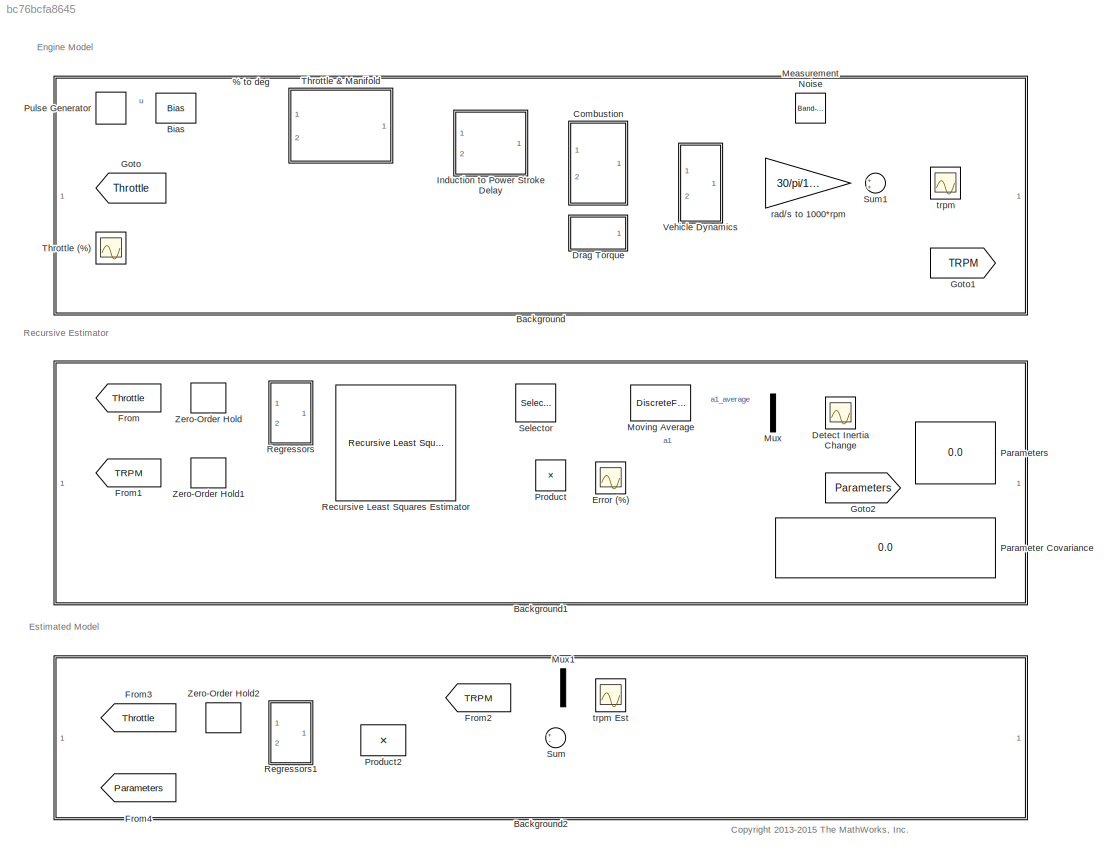
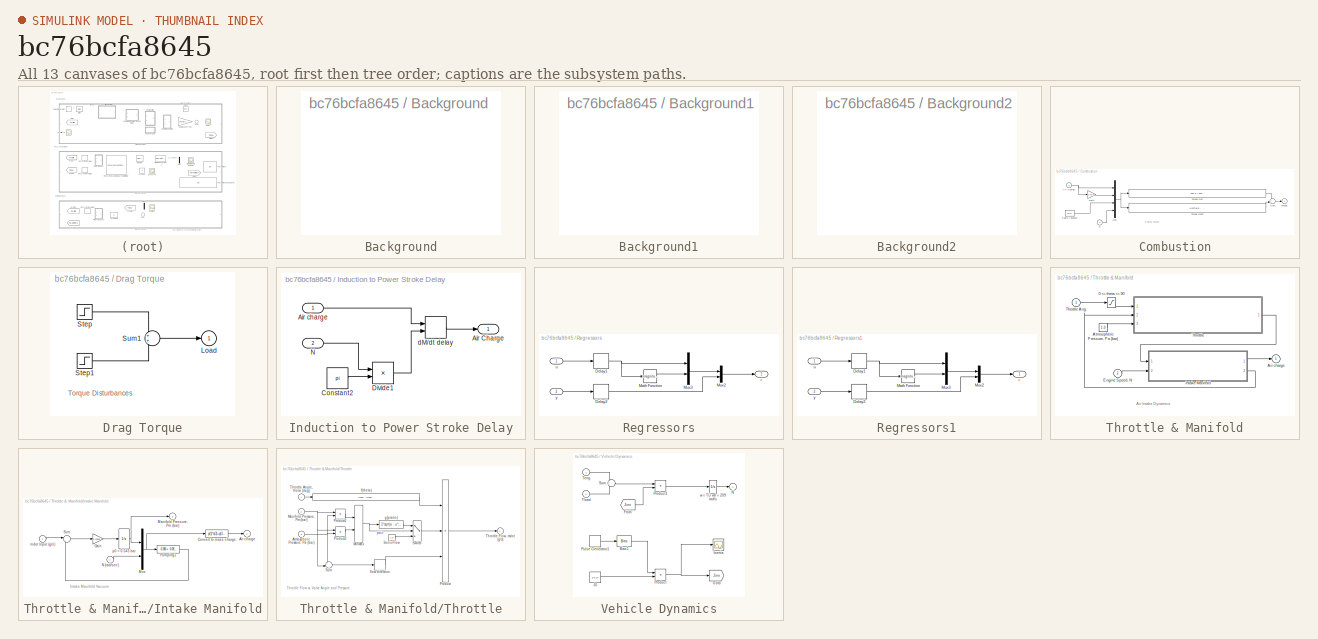
[diagram: thumbnail index - all 13 canvases of the model, root first then tree order]
MODEL slx_bc76bcfa8645
KIND model
CONFIG AbsTol = auto
CONFIG FixedStep = auto
CONFIG MaxStep = 0.01
CONFIG MinStep = auto
CONFIG RelTol = 1e-3
CONFIG SampleTimeConstraint = Unconstrained
CONFIG Solver = ode45
CONFIG SolverMode = Auto
CONFIG SolverName = ode45
CONFIG StartTime = 0.0
CONFIG StopTime = 200
WORKSPACE source: MAT-file member
WORKSPACE Adist = -0.7
BLOCK [Gain] % to deg 
  Gain = 90
BLOCK [SubSystem] Background
  Ports = []
  RequestExecContextInheritance = off
  Variant = off
BLOCK [SubSystem] Background1
  Ports = []
  RequestExecContextInheritance = off
  Variant = off
BLOCK [SubSystem] Background2
  Ports = []
  RequestExecContextInheritance = off
  Variant = off
BLOCK [Bias] Bias
  Bias = 1/9
  SaturateOnIntegerOverflow = off
BLOCK [SubSystem] Combustion
  Ports = [2, 1]
  RTWMemSecDataConstants = Default
  RTWMemSecDataInternal = Default
  RTWMemSecDataParameters = Default
  RTWMemSecFuncExecute = Default
  RTWMemSecFuncInitTerm = Default
  RequestExecContextInheritance = off
  Variant = off
BLOCK [Inport] Combustion/Air Charge
  IconDisplay = Port number
BLOCK [Gain] Combustion/Gain
  Gain = 1/14.6
  OutDataTypeStr = Inherit: Inherit via internal rule
  ParamDataTypeStr = Inherit: Inherit via internal rule
  SaturateOnIntegerOverflow = off
BLOCK [Mux] Combustion/Mux
  DisplayOption = bar
  Ports = [4, 1]
BLOCK [Inport] Combustion/N
  IconDisplay = Port number
  Port = 2
BLOCK [Constant] Combustion/Spark Advance
  Value = 15.0
BLOCK [Sum] Combustion/Sum
  IconShape = round
  Ports = [2, 1]
BLOCK [Outport] Combustion/Torque
  IconDisplay = Port number
  InitialOutput = 0
BLOCK [Fcn] Combustion/Torque Gen
  Expr = -181.3 + 379.36*u[1] + 21.91*u[1]/u[2] - (0.85*u[1]*u[1])/(u[2]*u[2]) + 0.26*u[3] - 0.0028*u[3]*u[3]
BLOCK [Fcn] Combustion/Torque Gen2
  Expr = 0.027*u[4] - 0.000107*u[4]*u[4] + 0.00048*u[4]*u[3] + 2.55*u[3]*u[1] - 0.05*u[3]*u[3]*u[1]
BLOCK [Scope] Detect Inertia Change
  Ports = [1]
  ScopeSpecificationString = C++SS(StrPVP('Location','[1182, 429, 1508, 681]'),StrPVP('Open','off'),MxPVP('AxesTitles',24,'struct(''axes1'',''%<SignalLabel>'')'),MxPVP('ScopeGraphics',28,'struct(''FigureColor'',''[0.501960784313725 0.501960784313725 0.501960784313725]'',''AxesColor'',''[0 0 0]'',''AxesTickColor'',''[1 1 1]'',''LineColors'',''[1 1 0;1 0 1;0 1 1;1 0 0;0 1 0;0 0 1]'',''LineStyles'',''-|-|-|-|-|-'',''LineWidths''...<+389ch>
BLOCK [SubSystem] Drag Torque
  Ports = [0, 1]
  RTWMemSecDataConstants = Default
  RTWMemSecDataInternal = Default
  RTWMemSecDataParameters = Default
  RTWMemSecFuncExecute = Default
  RTWMemSecFuncInitTerm = Default
  RequestExecContextInheritance = off
  Variant = off
BLOCK [Outport] Drag Torque/Load
  IconDisplay = Port number
  InitialOutput = 0
BLOCK [Step] Drag Torque/Step
  After = 0
  SampleTime = 0
  Time = 45
BLOCK [Step] Drag Torque/Step1
  After = 0
  SampleTime = 0
  Time = 45
BLOCK [Sum] Drag Torque/Sum1
  IconShape = round
  Ports = [2, 1]
BLOCK [Scope] Error (%)
  Ports = [1]
  ScopeSpecificationString = C++SS(StrPVP('Location','[1217, 833, 1537, 1088]'),StrPVP('Open','off'),MxPVP('AxesTitles',24,'struct(''axes1'',''%<SignalLabel>'')'),MxPVP('ScopeGraphics',28,'struct(''FigureColor'',''[0.5 0.5 0.5]'',''AxesColor'',''[0 0 0]'',''AxesTickColor'',''[1 1 1]'',''LineColors'',''[1 1 0;1 0 1;0 1 1;1 0 0;0 1 0;0 0 1]'',''LineStyles'',''-|-|-|-|-|-'',''LineWidths'',''[0.5 0.5 0.5 0.5 0.5 0.5]'',''MarkerSt...<+323ch>
BLOCK [From] From
  GotoTag = Throttle
BLOCK [From] From1
  GotoTag = TRPM
BLOCK [From] From2
  GotoTag = TRPM
BLOCK [From] From3
  GotoTag = Throttle
BLOCK [From] From4
  GotoTag = Parameters
BLOCK [Goto] Goto
  GotoTag = Throttle
BLOCK [Goto] Goto1
  GotoTag = TRPM
BLOCK [Goto] Goto2
  GotoTag = Parameters
BLOCK [SubSystem] Induction to Power Stroke Delay
  Ports = [2, 1]
  RTWMemSecDataConstants = Default
  RTWMemSecDataInternal = Default
  RTWMemSecDataParameters = Default
  RTWMemSecFuncExecute = Default
  RTWMemSecFuncInitTerm = Default
  RequestExecContextInheritance = off
  Variant = off
BLOCK [Outport] Induction to Power Stroke Delay/Air Charge
  IconDisplay = Port number
BLOCK [Inport] Induction to Power Stroke Delay/Air charge
  IconDisplay = Port number
BLOCK [Constant] Induction to Power Stroke Delay/Constant2
  Value = pi
BLOCK [Product] Induction to Power Stroke Delay/Divide1
  InputSameDT = off
  Inputs = /*
  OutDataTypeStr = Inherit: Inherit via internal rule
  Ports = [2, 1]
  RndMeth = Floor
  SaturateOnIntegerOverflow = off
BLOCK [Inport] Induction to Power Stroke Delay/N
  IconDisplay = Port number
  Port = 2
BLOCK [VariableTransportDelay] Induction to Power Stroke Delay/dM//dt delay
  InitialOutput = 0.152231307101552
  MaximumDelay = 10
  MaximumPoints = 5120
  PadeOrder = 2
  Ports = [2, 1]
  TransDelayFeedthrough = on
BLOCK [Reference] Measurement Noise  REF=simulink/Sources/Band-Limited
White Noise
  Ports = [0, 1]
  SourceBlock = simulink/Sources/Band-Limited\nWhite Noise
  SourceType = Band-Limited White Noise.
BLOCK [DiscreteFilter] Moving Average
  Denominator = [1 -(1-1/N)]
  InputPortMap = u0
  Numerator = [0 1/N]
  Ports = [1, 1]
BLOCK [Mux] Mux
  DisplayOption = bar
  Inputs = 2
  Ports = [2, 1]
BLOCK [Mux] Mux1
  DisplayOption = bar
  Inputs = 2
  Ports = [2, 1]
BLOCK [Display] Parameter Covariance
  Decimation = 1
  Ports = [1]
BLOCK [Display] Parameters
  Decimation = 1
  Ports = [1]
BLOCK [Product] Product
  InputSameDT = off
  Inputs = */
  OutDataTypeStr = Inherit: Inherit via internal rule
  Ports = [2, 1]
  RndMeth = Floor
  SaturateOnIntegerOverflow = off
BLOCK [Product] Product2
  InputSameDT = off
  Multiplication = Matrix(*)
  OutDataTypeStr = Inherit: Inherit via internal rule
  Ports = [2, 1]
  RndMeth = Floor
  SaturateOnIntegerOverflow = off
BLOCK [DiscretePulseGenerator] Pulse Generator
  Amplitude = 7/9
  Period = 20
  Ports = [0, 1]
  PulseType = Time based
  PulseWidth = 50
BLOCK [Reference] Recursive Least Squares Estimator  REF=slident/Estimators/Recursive Least Squares Estimator  (lib defined in mdl_f7d4911ca73a)
  Ports = [2, 3]
  SourceBlock = slident/Estimators/Recursive Least Squares Estimator
  SourceType = idEstimatorsRLS
BLOCK [SubSystem] Regressors
  Ports = [2, 1]
  RequestExecContextInheritance = off
  Variant = off
BLOCK [Delay] Regressors/Delay1
  DelayLength = 1
  InitialCondition = 1
  InputPortMap = u0
  Ports = [1, 1]
  SampleTime = Ts
BLOCK [Delay] Regressors/Delay2
  DelayLength = 1
  InitialCondition = 2
  InputPortMap = u0
  Ports = [1, 1]
  SampleTime = Ts
BLOCK [Math] Regressors/Math Function
  Operator = magnitude^2
  Ports = [1, 1]
BLOCK [Mux] Regressors/Mux2
  DisplayOption = bar
  Inputs = 2
  Ports = [2, 1]
BLOCK [Mux] Regressors/Mux3
  DisplayOption = bar
  Inputs = 2
  Ports = [2, 1]
BLOCK [Outport] Regressors/r
  IconDisplay = Port number
BLOCK [Inport] Regressors/u
  IconDisplay = Port number
BLOCK [Inport] Regressors/y
  IconDisplay = Port number
  Port = 2
BLOCK [SubSystem] Regressors1
  Ports = [2, 1]
  RequestExecContextInheritance = off
  Variant = off
BLOCK [Delay] Regressors1/Delay1
  DelayLength = 1
  InitialCondition = 1
  InputPortMap = u0
  Ports = [1, 1]
  SampleTime = Ts
BLOCK [Delay] Regressors1/Delay2
  DelayLength = 1
  InitialCondition = 2
  InputPortMap = u0
  Ports = [1, 1]
  SampleTime = Ts
BLOCK [Math] Regressors1/Math Function
  Operator = magnitude^2
  Ports = [1, 1]
BLOCK [Mux] Regressors1/Mux2
  DisplayOption = bar
  Inputs = 2
  Ports = [2, 1]
BLOCK [Mux] Regressors1/Mux3
  DisplayOption = bar
  Inputs = 2
  Ports = [2, 1]
BLOCK [Outport] Regressors1/r
  IconDisplay = Port number
BLOCK [Inport] Regressors1/u
  IconDisplay = Port number
BLOCK [Inport] Regressors1/y
  IconDisplay = Port number
  Port = 2
BLOCK [Selector] Selector
  IndexOptions = Index vector (dialog)
  Indices = 1
  InputPortWidth = 3
  OutputSizes = 1
  Ports = [1, 1]
BLOCK [Sum] Sum
  InputSameDT = off
  Inputs = +-
  OutDataTypeStr = Inherit: Inherit via internal rule
  Ports = [2, 1]
  SaturateOnIntegerOverflow = off
BLOCK [Sum] Sum1
  IconShape = round
  InputSameDT = off
  Inputs = ++|
  OutDataTypeStr = Inherit: Inherit via internal rule
  Ports = [2, 1]
  SaturateOnIntegerOverflow = off
BLOCK [SubSystem] Throttle & Manifold
  Ports = [2, 1]
  RTWMemSecDataConstants = Default
  RTWMemSecDataInternal = Default
  RTWMemSecDataParameters = Default
  RTWMemSecFuncExecute = Default
  RTWMemSecFuncInitTerm = Default
  RequestExecContextInheritance = off
  Variant = off
BLOCK [Saturate] Throttle & Manifold/0 <= theta <= 90
  InputPortMap = u0
  LowerLimit = 0
  Ports = [1, 1]
  UpperLimit = 90
BLOCK [Outport] Throttle & Manifold/Air charge
  IconDisplay = Port number
  InitialOutput = 0
BLOCK [Constant] Throttle & Manifold/Atmospheric Pressure, Pa (bar)
  Value = 1.0
BLOCK [Inport] Throttle & Manifold/Engine Speed, N
  IconDisplay = Port number
  Port = 2
BLOCK [SubSystem] Throttle & Manifold/Intake Manifold
  Ports = [2, 2]
  RTWMemSecDataConstants = Default
  RTWMemSecDataInternal = Default
  RTWMemSecDataParameters = Default
  RTWMemSecFuncExecute = Default
  RTWMemSecFuncInitTerm = Default
  RequestExecContextInheritance = off
  Variant = off
BLOCK [Outport] Throttle & Manifold/Intake Manifold/Air charge
  IconDisplay = Port number
  InitialOutput = 0
BLOCK [Fcn] Throttle & Manifold/Intake Manifold/Convert to mass charge
  Expr = p(1)*u(2)+p(2)*u(1)+p(3)*u(1)*u(1)+p(4)*u(1)*u(2)+p(5)
BLOCK [Gain] Throttle & Manifold/Intake Manifold/Gain
  Gain = 0.41328
  OutDataTypeStr = Inherit: Inherit via internal rule
  ParamDataTypeStr = Inherit: Inherit via internal rule
  SaturateOnIntegerOverflow = off
BLOCK [Outport] Throttle & Manifold/Intake Manifold/Manifold Pressure, Pm (bar)
  IconDisplay = Port number
  InitialOutput = 0
  Port = 2
BLOCK [Mux] Throttle & Manifold/Intake Manifold/Mux
  DisplayOption = bar
  Inputs = 2
  Ports = [2, 1]
BLOCK [Inport] Throttle & Manifold/Intake Manifold/N (rad//sec)
  IconDisplay = Port number
  Port = 2
BLOCK [Fcn] Throttle & Manifold/Intake Manifold/Pumping1
  Expr = -0.366 + 0.08979*u[1]*u[2] - 0.0337*u[2]*u[1]*u[1] + 0.0001*u[1]*u[2]*u[2]
BLOCK [Sum] Throttle & Manifold/Intake Manifold/Sum
  IconShape = round
  Inputs = |+-
  Ports = [2, 1]
BLOCK [Inport] Throttle & Manifold/Intake Manifold/mdot Input (g//s)
  IconDisplay = Port number
BLOCK [Integrator] Throttle & Manifold/Intake Manifold/p0 = 0.543 bar
  InitialCondition = 0.543634736225556
  Ports = [1, 1]
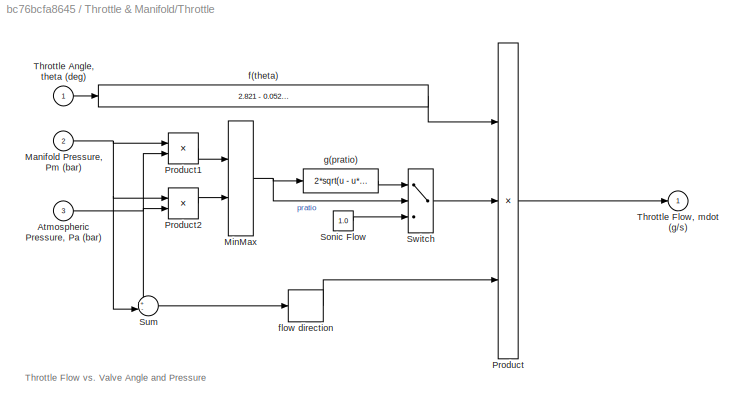
BLOCK [SubSystem] Throttle & Manifold/Throttle
  Ports = [3, 1]
  RTWMemSecDataConstants = Default
  RTWMemSecDataInternal = Default
  RTWMemSecDataParameters = Default
  RTWMemSecFuncExecute = Default
  RTWMemSecFuncInitTerm = Default
  RequestExecContextInheritance = off
  Variant = off
BLOCK [Inport] Throttle & Manifold/Throttle Ang.
  IconDisplay = Port number
BLOCK [Inport] Throttle & Manifold/Throttle/Atmospheric Pressure, Pa (bar) 
  IconDisplay = Port number
  Port = 3
BLOCK [Inport] Throttle & Manifold/Throttle/Manifold Pressure, Pm (bar)
  IconDisplay = Port number
  Port = 2
BLOCK [MinMax] Throttle & Manifold/Throttle/MinMax
  Inputs = 2
  Ports = [2, 1]
BLOCK [Product] Throttle & Manifold/Throttle/Product
  Inputs = 3
  Ports = [3, 1]
BLOCK [Product] Throttle & Manifold/Throttle/Product1
  Inputs = */
  Ports = [2, 1]
BLOCK [Product] Throttle & Manifold/Throttle/Product2
  Inputs = /*
  Ports = [2, 1]
BLOCK [Constant] Throttle & Manifold/Throttle/Sonic Flow 
  Value = 1.0
BLOCK [Sum] Throttle & Manifold/Throttle/Sum
  IconShape = round
  Inputs = +-|
  Ports = [2, 1]
BLOCK [Switch] Throttle & Manifold/Throttle/Switch
  Threshold = 0.5
BLOCK [Inport] Throttle & Manifold/Throttle/Throttle Angle, theta (deg)
  IconDisplay = Port number
BLOCK [Outport] Throttle & Manifold/Throttle/Throttle Flow, mdot (g//s)
  IconDisplay = Port number
  InitialOutput = 0
BLOCK [Fcn] Throttle & Manifold/Throttle/f(theta)
  Expr = 2.821 - 0.05231*u + 0.10299*u*u - 0.00063*u*u*u
BLOCK [Signum] Throttle & Manifold/Throttle/flow direction
BLOCK [Fcn] Throttle & Manifold/Throttle/g(pratio)
  Expr = 2*sqrt(u - u*u)
BLOCK [Scope] Throttle (%)
  Ports = [1]
  ScopeSpecificationString = C++SS(StrPVP('Location','[255, 474, 815, 729]'),StrPVP('Open','off'),MxPVP('AxesTitles',24,'struct(''axes1'',''%<SignalLabel>'')'),MxPVP('ScopeGraphics',28,'struct(''FigureColor'',''[0.5 0.5 0.5]'',''AxesColor'',''[0 0 0]'',''AxesTickColor'',''[1 1 1]'',''LineColors'',''[1 1 0;1 0 1;0 1 1;1 0 0;0 1 0;0 0 1]'',''LineStyles'',''-|-|-|-|-|-'',''LineWidths'',''[0.5 0.5 0.5 0.5 0.5 0.5]'',''MarkerStyle...<+292ch>
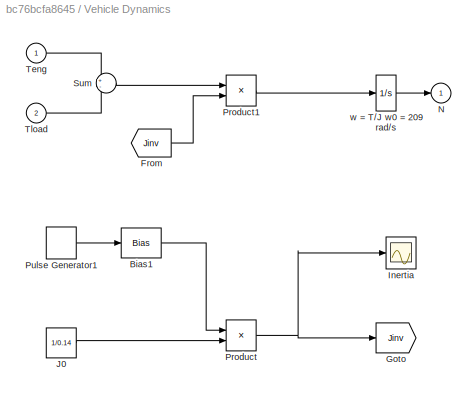
BLOCK [SubSystem] Vehicle Dynamics
  Ports = [2, 1]
  RTWMemSecDataConstants = Default
  RTWMemSecDataInternal = Default
  RTWMemSecDataParameters = Default
  RTWMemSecFuncExecute = Default
  RTWMemSecFuncInitTerm = Default
  RequestExecContextInheritance = off
  Variant = off
BLOCK [Bias] Vehicle Dynamics/Bias1
  Bias = 1
  SaturateOnIntegerOverflow = off
BLOCK [From] Vehicle Dynamics/From
  GotoTag = Jinv
BLOCK [Goto] Vehicle Dynamics/Goto
  GotoTag = Jinv
BLOCK [Scope] Vehicle Dynamics/Inertia
  Ports = [1]
  ScopeSpecificationString = C++SS(StrPVP('Location','[256, 850, 816, 1095]'),StrPVP('Open','off'),MxPVP('AxesTitles',24,'struct(''axes1'',''%<SignalLabel>'')'),MxPVP('ScopeGraphics',28,'struct(''FigureColor'',''[0.5 0.5 0.5]'',''AxesColor'',''[0 0 0]'',''AxesTickColor'',''[1 1 1]'',''LineColors'',''[1 1 0;1 0 1;0 1 1;1 0 0;0 1 0;0 0 1]'',''LineStyles'',''-|-|-|-|-|-'',''LineWidths'',''[0.5 0.5 0.5 0.5 0.5 0.5]'',''MarkerStyl...<+296ch>
BLOCK [Constant] Vehicle Dynamics/J0
  Value = 1/0.14
BLOCK [Outport] Vehicle Dynamics/N
  IconDisplay = Port number
  InitialOutput = 0
BLOCK [Product] Vehicle Dynamics/Product
  InputSameDT = off
  OutDataTypeStr = Inherit: Inherit via internal rule
  Ports = [2, 1]
  RndMeth = Floor
  SaturateOnIntegerOverflow = off
BLOCK [Product] Vehicle Dynamics/Product1
  InputSameDT = off
  OutDataTypeStr = Inherit: Inherit via internal rule
  Ports = [2, 1]
  RndMeth = Floor
  SaturateOnIntegerOverflow = off
BLOCK [DiscretePulseGenerator] Vehicle Dynamics/Pulse Generator1
  Amplitude = Adist
  Period = Tdist
  PhaseDelay = Tdist/2
  Ports = [0, 1]
  PulseType = Time based
  PulseWidth = 50
BLOCK [Sum] Vehicle Dynamics/Sum
  IconShape = round
  Inputs = +-
  Ports = [2, 1]
BLOCK [Inport] Vehicle Dynamics/Teng
  IconDisplay = Port number
BLOCK [Inport] Vehicle Dynamics/Tload
  IconDisplay = Port number
  Port = 2
BLOCK [Integrator] Vehicle Dynamics/w = T//J w0 = 209 rad//s
  InitialCondition = 209.4395102393211
  Ports = [1, 1]
BLOCK [ZeroOrderHold] Zero-Order Hold
  SampleTime = Ts
BLOCK [ZeroOrderHold] Zero-Order Hold1
  SampleTime = Ts
BLOCK [ZeroOrderHold] Zero-Order Hold2
  SampleTime = Ts
BLOCK [Gain] rad//s to 1000*rpm
  Gain = 30/pi/1000
BLOCK [Scope] trpm
  Ports = [1]
  ScopeSpecificationString = C++SS(StrPVP('Location','[1191, 110, 1751, 365]'),StrPVP('Open','off'),MxPVP('AxesTitles',24,'struct(''axes1'',''%<SignalLabel>'')'),MxPVP('ScopeGraphics',28,'struct(''FigureColor'',''[0.5 0.5 0.5]'',''AxesColor'',''[0 0 0]'',''AxesTickColor'',''[1 1 1]'',''LineColors'',''[1 1 0;1 0 1;0 1 1;1 0 0;0 1 0;0 0 1]'',''LineStyles'',''-|-|-|-|-|-'',''LineWidths'',''[0.5 0.5 0.5 0.5 0.5 0.5]'',''MarkerSty...<+307ch>
BLOCK [Scope] trpm Est
  NumInputPorts = 2
  Ports = [2]
  ScopeSpecificationString = C++SS(StrPVP('Location','[1189, 762, 1749, 1042]'),StrPVP('Open','off'),MxPVP('AxesTitles',24,'struct(''axes1'',''%<SignalLabel>'',''axes2'',''%<SignalLabel>'')'),MxPVP('ScopeGraphics',28,'struct(''FigureColor'',''[0.501960784313725 0.501960784313725 0.501960784313725]'',''AxesColor'',''[0 0 0]'',''AxesTickColor'',''[1 1 1]'',''LineColors'',''[1 1 0;1 0 1;0 1 1;1 0 0;0 1 0;0 0 1]'',''LineStyles'',...<+400ch>
ANNOTATION (root): <copyright redacted>
ANNOTATION (root): Engine Model
ANNOTATION (root): Estimated Model
ANNOTATION (root): Recursive Estimator
ANNOTATION Combustion: Engine Torque
ANNOTATION Drag Torque: Torque Disturbances
ANNOTATION Throttle & Manifold: Air Intake Dynamics
ANNOTATION Throttle & Manifold/Intake Manifold: Intake Manifold Vacuum
ANNOTATION Throttle & Manifold/Throttle: Throttle Flow vs. Valve Angle and Pressure
LINE % to deg :1 -> Throttle & Manifold:1
NET Bias:1 -> % to deg :1, Goto:1, Throttle (%):1
NET Combustion/Air Charge:1 -> Combustion/Gain:1, Combustion/Mux:1
LINE Combustion/Gain:1 -> Combustion/Mux:2
NET Combustion/Mux:1 -> Combustion/Torque Gen2:1, Combustion/Torque Gen:1
LINE Combustion/N:1 -> Combustion/Mux:4
LINE Combustion/Spark Advance:1 -> Combustion/Mux:3
LINE Combustion/Sum:1 -> Combustion/Torque:1
LINE Combustion/Torque Gen2:1 -> Combustion/Sum:2
LINE Combustion/Torque Gen:1 -> Combustion/Sum:1
LINE Combustion:1 -> Vehicle Dynamics:1
LINE Drag Torque/Step1:1 -> Drag Torque/Sum1:2
LINE Drag Torque/Step:1 -> Drag Torque/Sum1:1
LINE Drag Torque/Sum1:1 -> Drag Torque/Load:1
LINE Drag Torque:1 -> Vehicle Dynamics:2
LINE From1:1 -> Zero-Order Hold1:1
NET From2:1 -> Mux1:2, Sum:1
LINE From3:1 -> Zero-Order Hold2:1
LINE From4:1 -> Product2:2
LINE From:1 -> Zero-Order Hold:1
LINE Induction to Power Stroke Delay/Air charge:1 -> Induction to Power Stroke Delay/dM//dt delay:1
LINE Induction to Power Stroke Delay/Constant2:1 -> Induction to Power Stroke Delay/Divide1:2
LINE Induction to Power Stroke Delay/Divide1:1 -> Induction to Power Stroke Delay/dM//dt delay:2
LINE Induction to Power Stroke Delay/N:1 -> Induction to Power Stroke Delay/Divide1:1
LINE Induction to Power Stroke Delay/dM//dt delay:1 -> Induction to Power Stroke Delay/Air Charge:1
LINE Induction to Power Stroke Delay:1 -> Combustion:1
LINE Measurement Noise:1 -> Sum1:1
LINE Moving Average:1 -> Mux:1
LINE Mux1:1 -> trpm Est:1
LINE Mux:1 -> Detect Inertia Change:1
NET Product2:1 -> Mux1:1, Regressors1:2, Sum:2
LINE Product:1 -> Error (%):1
LINE Pulse Generator:1 -> Bias:1
NET Recursive Least Squares Estimator:1 -> Goto2:1, Parameters:1, Selector:1
LINE Recursive Least Squares Estimator:2 -> Product:1
LINE Recursive Least Squares Estimator:3 -> Parameter Covariance:1
NET Regressors/Delay1:1 -> Regressors/Math Function:1, Regressors/Mux3:1
LINE Regressors/Delay2:1 -> Regressors/Mux2:2
LINE Regressors/Math Function:1 -> Regressors/Mux3:2
LINE Regressors/Mux2:1 -> Regressors/r:1
LINE Regressors/Mux3:1 -> Regressors/Mux2:1
LINE Regressors/u:1 -> Regressors/Delay1:1
LINE Regressors/y:1 -> Regressors/Delay2:1
NET Regressors1/Delay1:1 -> Regressors1/Math Function:1, Regressors1/Mux3:1
LINE Regressors1/Delay2:1 -> Regressors1/Mux2:2
LINE Regressors1/Math Function:1 -> Regressors1/Mux3:2
LINE Regressors1/Mux2:1 -> Regressors1/r:1
LINE Regressors1/Mux3:1 -> Regressors1/Mux2:1
LINE Regressors1/u:1 -> Regressors1/Delay1:1
LINE Regressors1/y:1 -> Regressors1/Delay2:1
LINE Regressors1:1 -> Product2:1
LINE Regressors:1 -> Recursive Least Squares Estimator:1
NET Selector:1 -> Moving Average:1, Mux:2
NET Sum1:1 -> Goto1:1, trpm:1
LINE Sum:1 -> trpm Est:2
LINE Throttle & Manifold/0 <= theta <= 90:1 -> Throttle & Manifold/Throttle:1
LINE Throttle & Manifold/Atmospheric Pressure, Pa (bar):1 -> Throttle & Manifold/Throttle:3
LINE Throttle & Manifold/Engine Speed, N:1 -> Throttle & Manifold/Intake Manifold:2
LINE Throttle & Manifold/Intake Manifold/Convert to mass charge:1 -> Throttle & Manifold/Intake Manifold/Air charge:1
LINE Throttle & Manifold/Intake Manifold/Gain:1 -> Throttle & Manifold/Intake Manifold/p0 = 0.543 bar:1
NET Throttle & Manifold/Intake Manifold/Mux:1 -> Throttle & Manifold/Intake Manifold/Convert to mass charge:1, Throttle & Manifold/Intake Manifold/Pumping1:1
LINE Throttle & Manifold/Intake Manifold/N (rad//sec):1 -> Throttle & Manifold/Intake Manifold/Mux:2
LINE Throttle & Manifold/Intake Manifold/Pumping1:1 -> Throttle & Manifold/Intake Manifold/Sum:2
LINE Throttle & Manifold/Intake Manifold/Sum:1 -> Throttle & Manifold/Intake Manifold/Gain:1
LINE Throttle & Manifold/Intake Manifold/mdot Input (g//s):1 -> Throttle & Manifold/Intake Manifold/Sum:1
NET Throttle & Manifold/Intake Manifold/p0 = 0.543 bar:1 -> Throttle & Manifold/Intake Manifold/Manifold Pressure, Pm (bar):1, Throttle & Manifold/Intake Manifold/Mux:1
LINE Throttle & Manifold/Intake Manifold:1 -> Throttle & Manifold/Air charge:1
LINE Throttle & Manifold/Intake Manifold:2 -> Throttle & Manifold/Throttle:2
LINE Throttle & Manifold/Throttle Ang.:1 -> Throttle & Manifold/0 <= theta <= 90:1
NET Throttle & Manifold/Throttle/Atmospheric Pressure, Pa (bar) :1 -> Throttle & Manifold/Throttle/Product1:2, Throttle & Manifold/Throttle/Product2:2, Throttle & Manifold/Throttle/Sum:1
NET Throttle & Manifold/Throttle/Manifold Pressure, Pm (bar):1 -> Throttle & Manifold/Throttle/Product1:1, Throttle & Manifold/Throttle/Product2:1, Throttle & Manifold/Throttle/Sum:2
NET Throttle & Manifold/Throttle/MinMax:1 -> Throttle & Manifold/Throttle/Switch:2, Throttle & Manifold/Throttle/g(pratio):1
LINE Throttle & Manifold/Throttle/Product1:1 -> Throttle & Manifold/Throttle/MinMax:1
LINE Throttle & Manifold/Throttle/Product2:1 -> Throttle & Manifold/Throttle/MinMax:2
LINE Throttle & Manifold/Throttle/Product:1 -> Throttle & Manifold/Throttle/Throttle Flow, mdot (g//s):1
LINE Throttle & Manifold/Throttle/Sonic Flow :1 -> Throttle & Manifold/Throttle/Switch:3
LINE Throttle & Manifold/Throttle/Sum:1 -> Throttle & Manifold/Throttle/flow direction:1
LINE Throttle & Manifold/Throttle/Switch:1 -> Throttle & Manifold/Throttle/Product:2
LINE Throttle & Manifold/Throttle/Throttle Angle, theta (deg):1 -> Throttle & Manifold/Throttle/f(theta):1
LINE Throttle & Manifold/Throttle/f(theta):1 -> Throttle & Manifold/Throttle/Product:1
LINE Throttle & Manifold/Throttle/flow direction:1 -> Throttle & Manifold/Throttle/Product:3
LINE Throttle & Manifold/Throttle/g(pratio):1 -> Throttle & Manifold/Throttle/Switch:1
LINE Throttle & Manifold/Throttle:1 -> Throttle & Manifold/Intake Manifold:1
LINE Throttle & Manifold:1 -> Induction to Power Stroke Delay:1
LINE Vehicle Dynamics/Bias1:1 -> Vehicle Dynamics/Product:1
LINE Vehicle Dynamics/From:1 -> Vehicle Dynamics/Product1:2
LINE Vehicle Dynamics/J0:1 -> Vehicle Dynamics/Product:2
LINE Vehicle Dynamics/Product1:1 -> Vehicle Dynamics/w = T//J w0 = 209 rad//s:1
NET Vehicle Dynamics/Product:1 -> Vehicle Dynamics/Goto:1, Vehicle Dynamics/Inertia:1
LINE Vehicle Dynamics/Pulse Generator1:1 -> Vehicle Dynamics/Bias1:1
LINE Vehicle Dynamics/Sum:1 -> Vehicle Dynamics/Product1:1
LINE Vehicle Dynamics/Teng:1 -> Vehicle Dynamics/Sum:1
LINE Vehicle Dynamics/Tload:1 -> Vehicle Dynamics/Sum:2
LINE Vehicle Dynamics/w = T//J w0 = 209 rad//s:1 -> Vehicle Dynamics/N:1
NET Vehicle Dynamics:1 -> Combustion:2, Induction to Power Stroke Delay:2, Throttle & Manifold:2, rad//s to 1000*rpm:1
NET Zero-Order Hold1:1 -> Product:2, Recursive Least Squares Estimator:2, Regressors:2
LINE Zero-Order Hold2:1 -> Regressors1:1
LINE Zero-Order Hold:1 -> Regressors:1
LINE rad//s to 1000*rpm:1 -> Sum1:2
note: NET lines group one-source signal fan-out (src -> all destinations, sorted); 1:1 wires keep LINE
